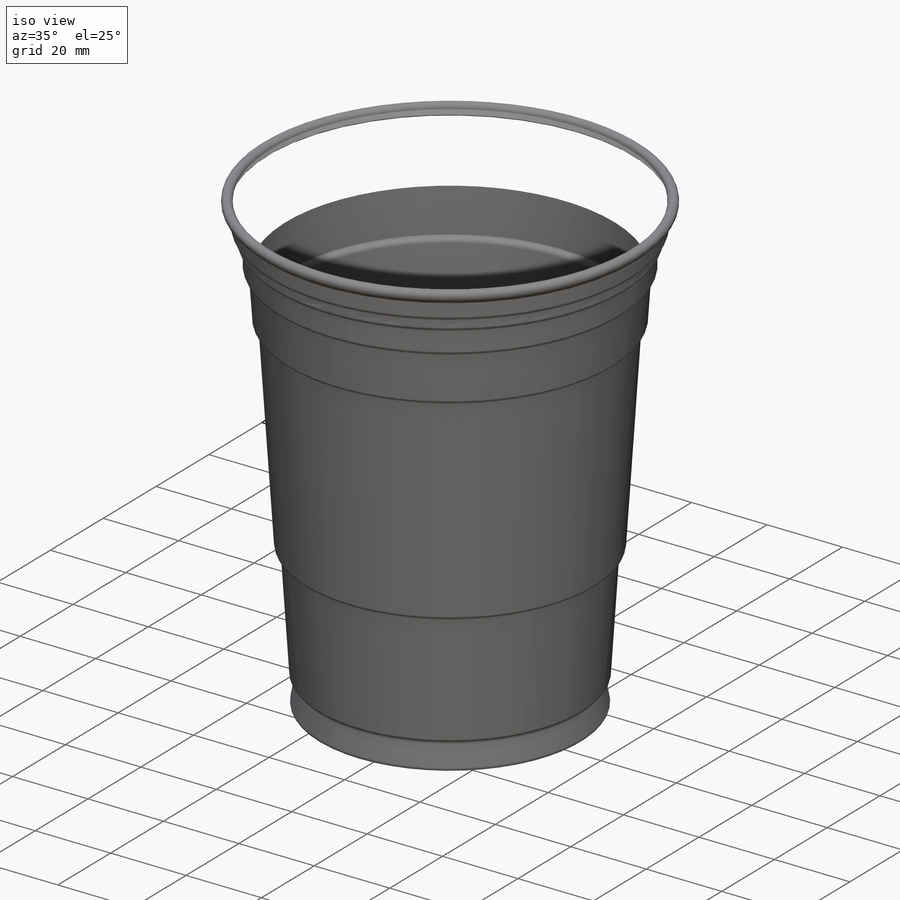
[diagram: iso view]
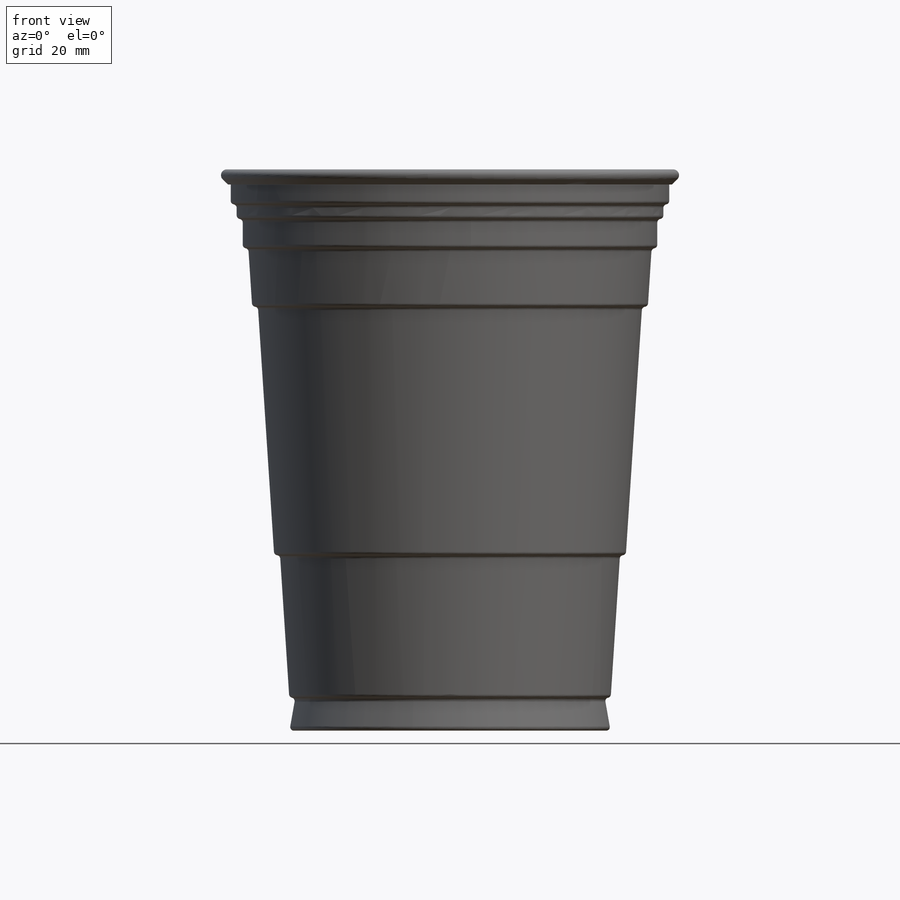
[diagram: front view]
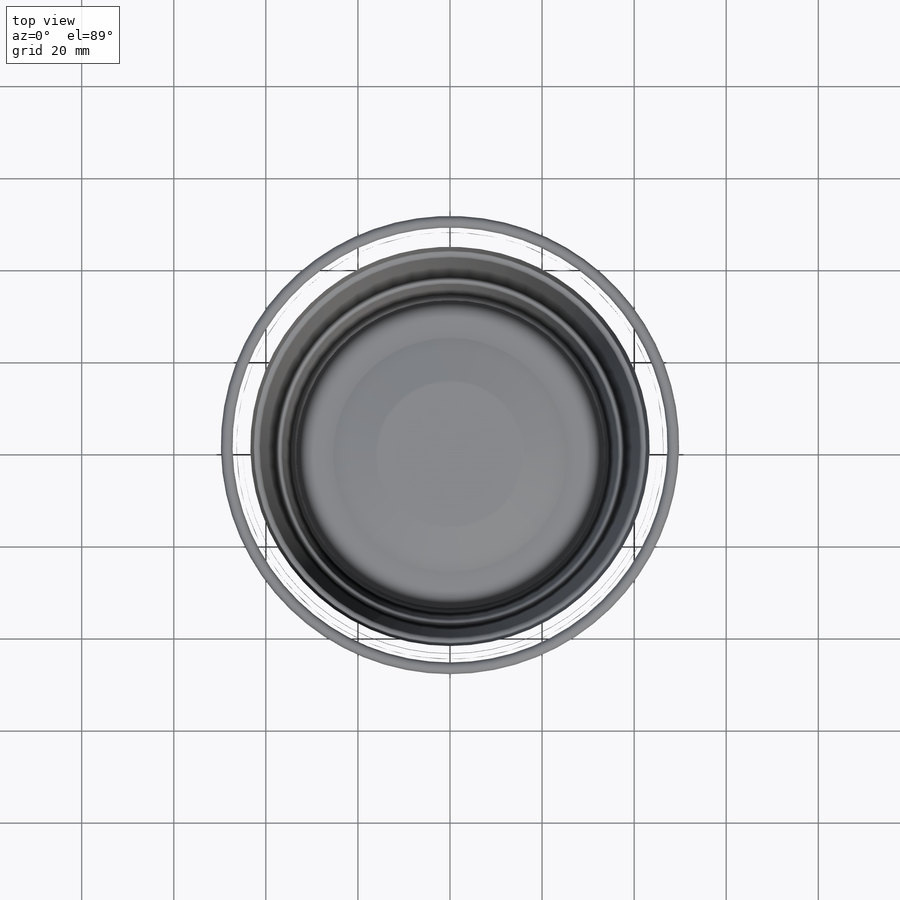
[diagram: top view]
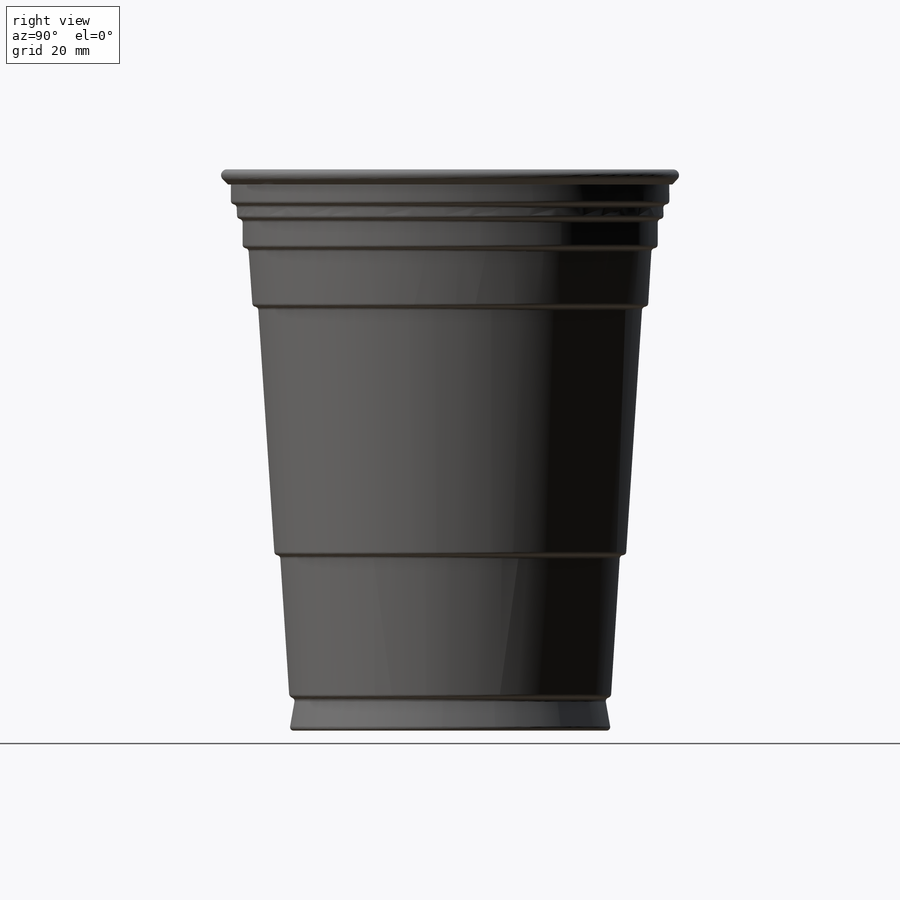
[diagram: right view]
SOLIDWORKS PART (.sldprt)
format: sldprt  version: not decoded by parser v0  size: 1,084,416 bytes
history: native  units: mm
features: fillet x8, sketch x5, revolve x2, extrude x2, material x1, shell x1, pattern_circular x1 (+12 scaffold rows collapsed)
feature tree (32):
  scaffold x12  (default folders/planes/origin — collapsed)
  material  "ABS PC"
  sketch  "Sketch1"  dims[c1.D1=63.5mm c1.D2=95.25mm c1.D3=120.65mm c2.D1=69.85mm c2.D4=~1.833309mm c3.D4=15.0deg c3.D5=31.75mm c3.D6=2.54mm c3.D7=~6.665656mm c4.D7=80.0deg c4.D8=6.35mm c4.D9=1.27mm c4.D10=3.175mm c4.D11=6.35mm c4.D12=12.7mm c4.D13=38.1mm]
  revolve  "Revolve1"  Angle=360deg
  fillet  "Fillet1"  Radius=0.79375mm
  fillet  "Fillet2"  Radius=0.79375mm
  shell  "Shell1"  Thickness=0.396875mm
  sketch  "Sketch2"  dims[c1.D1=1.27mm c1.D2=~1.222479mm c2.D2=45.0deg c2.D3=1.5875mm]
  revolve  "Revolve2"  Angle=360deg
  sketch  "Sketch3"  dims[c1.D3=1.016mm c1.D1=9.525mm c1.D2=0.381mm c1.D4=~2.240736mm c2.D1=0.254mm c2.D5=0.508mm c2.D6=1.0mm c2.D7=5.0mm]
  sketch  "Sketch4"  dims[D1=1.27mm D2=0.381mm]
  extrude  "Boss-Extrude1"  [1 undecoded]
  fillet  "Fillet5"  Radius=0.0254mm
  fillet  "Fillet3"  Radius=0.127mm
  fillet  "Fillet4"  Radius=0.127mm
  fillet  "Fillet6"  Radius=0.127mm
  pattern_circular  "CirPattern1"  Count=3 Angle=360deg
  sketch  "Sketch5"  dims[c1.D1=1.27mm c1.D2=~1.529619mm c2.D1=1.27mm c2.D2=1.524mm]
  extrude  "Boss-Extrude2"  Depth=0.127mm
  fillet  "Fillet7"  Radius=0.0635mm
  fillet  "Fillet9"  Radius=0.0635mm
decode coverage: 18 of 19 modeling features carry decoded parameters
note: ~ marks probable driven/reference dimensions
note: 1 parameter value undecoded
note: suppression state not decoded; provenance and decode notes live in map.json
